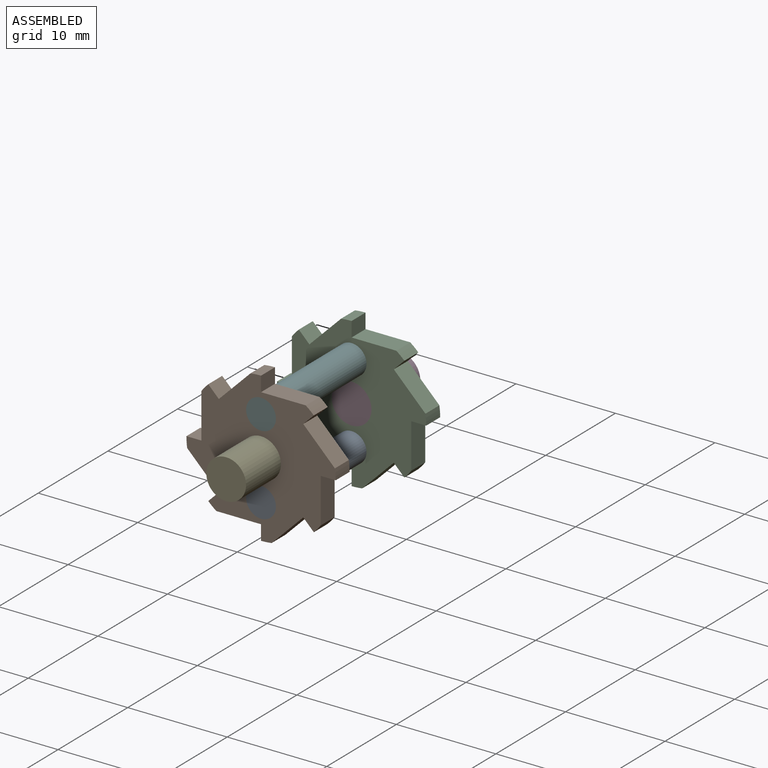
[diagram: assembled view]
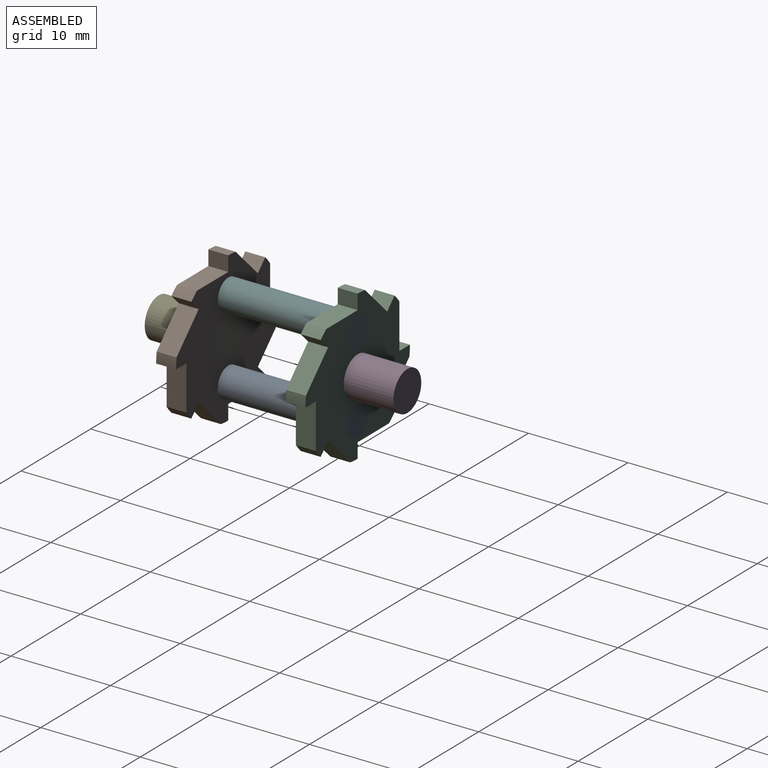
[diagram: assembled view, second angle]
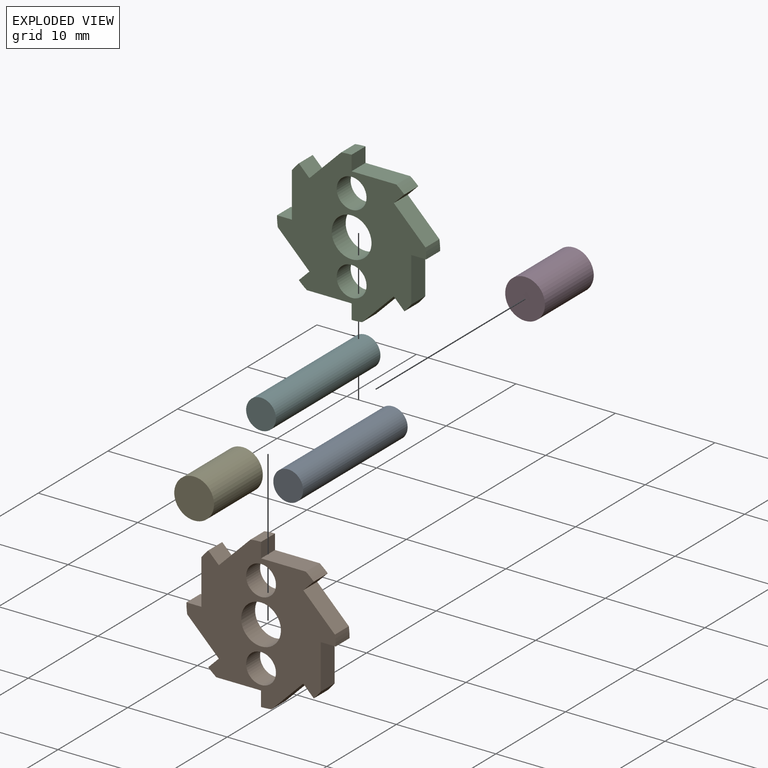
[diagram: exploded view]
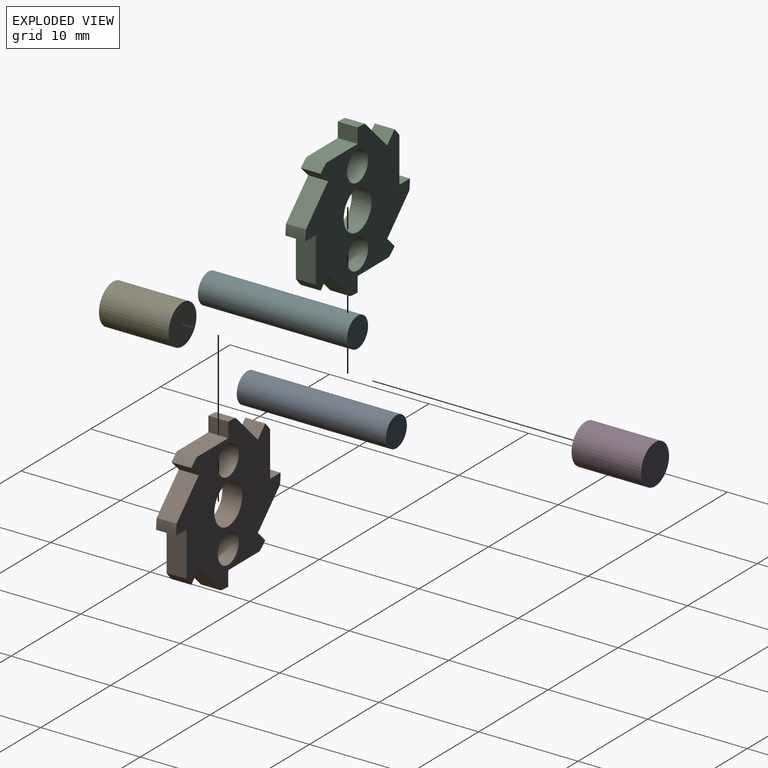
[diagram: exploded view, second angle]
ASSEMBLY  parts=6 mates=10
PART A: 3 faces, bbox 3x15x3 mm
  f0: cylinder r=1.5mm len=15mm, axis (0,1,0), area 141.4mm2, adj f1,f2
  f1: plane 3x3mm, normal (0,-1,0), area 7.1mm2, adj f0
  f2: plane 3x3mm, normal (0,1,0), area 7.1mm2, adj f0
PART B: 29 faces, bbox 15x2x15 mm
  f0: cylinder r=7.5mm len=2mm, axis (0,1,0), area 2.1mm2, adj f9,f10,f12,f25
  f1: cylinder r=7.5mm len=2mm, axis (0,1,0), area 2.1mm2, adj f9,f10,f23,f26
  f2: cylinder r=7.5mm len=2mm, axis (0,1,0), area 2.1mm2, adj f9,f10,f21,f24
  f3: cylinder r=7.5mm len=2mm, axis (0,1,0), area 2.1mm2, adj f9,f10,f19,f22
  f4: cylinder r=7.5mm len=2mm, axis (0,1,0), area 2.1mm2, adj f9,f10,f17,f20
  f5: cylinder r=7.5mm len=2mm, axis (0,1,0), area 2.1mm2, adj f9,f10,f15,f18
  f6: cylinder r=7.5mm len=2mm, axis (0,1,0), area 2.1mm2, adj f9,f10,f13,f16
  f7: cylinder r=2mm len=4mm, axis (0,1,0), area 25.1mm2, adj f9,f10
  f8: cylinder r=7.5mm len=2mm, axis (0,1,0), area 2.1mm2, adj f9,f10,f11,f14
  f9: plane 15x15mm, normal (0,-1,0), area 113.2mm2, adj f0,f1,f2,f3,f4,f5,f6,f7
  f10: plane 15x15mm, normal (0,1,0), area 113.2mm2, adj f0,f1,f2,f3,f4,f5,f6,f7
  f11: plane 2x1.5mm, normal (1,0,0), area 3mm2, adj f8,f9,f10,f12
  f12: plane 4.5x2mm, normal (0,0,1), area 9mm2, adj f0,f9,f10,f11
  f13: plane 2x1.06mm, normal (0.71,0,0.71), area 3mm2, adj f6,f9,f10,f14
  f14: plane 3.18x3.18mm, normal (-0.71,0,0.71), area 9mm2, adj f8,f9,f10,f13
  f15: plane 2x1.5mm, normal (0,0,1), area 3mm2, adj f5,f9,f10,f16
  f16: plane 4.5x2mm, normal (-1,0,0), area 9mm2, adj f6,f9,f10,f15
  f17: plane 2x1.06mm, normal (-0.71,0,0.71), area 3mm2, adj f4,f9,f10,f18
  f18: plane 3.18x3.18mm, normal (-0.71,0,-0.71), area 9mm2, adj f5,f9,f10,f17
  f19: plane 2x1.5mm, normal (-1,0,0), area 3mm2, adj f3,f9,f10,f20
  f20: plane 4.5x2mm, normal (0,0,-1), area 9mm2, adj f4,f9,f10,f19
  f21: plane 2x1.06mm, normal (-0.71,0,-0.71), area 3mm2, adj f2,f9,f10,f22
  f22: plane 3.18x3.18mm, normal (0.71,0,-0.71), area 9mm2, adj f3,f9,f10,f21
  f23: plane 2x1.5mm, normal (0,0,-1), area 3mm2, adj f1,f9,f10,f24
  f24: plane 4.5x2mm, normal (1,0,0), area 9mm2, adj f2,f9,f10,f23
  f25: plane 2x1.06mm, normal (0.71,0,-0.71), area 3mm2, adj f0,f9,f10,f26
  f26: plane 3.18x3.18mm, normal (0.71,0,0.71), area 9mm2, adj f1,f9,f10,f25
  f27: cylinder r=1.5mm len=3mm, axis (0,-1,0), area 18.8mm2, adj f9,f10
  f28: cylinder r=1.5mm len=3mm, axis (0,-1,0), area 18.8mm2, adj f9,f10
PART C: same geometry as B
PART D: 3 faces, bbox 4x7x4 mm
  f0: cylinder r=2mm len=7mm, axis (0,1,0), area 88mm2, adj f1,f2
  f1: plane 4x4mm, normal (0,-1,0), area 12.6mm2, adj f0
  f2: plane 4x4mm, normal (0,1,0), area 12.6mm2, adj f0
PART E: same geometry as D
PART F: same geometry as A
PLACE A t=(-0.46,10.52,-3.61)mm
PLACE B t=(-0.46,-2.48,0.39)mm
PLACE C t=(-0.46,10.52,0.39)mm
PLACE D t=(-0.46,15.52,0.39)mm
PLACE E t=(-0.46,-2.48,0.39)mm
PLACE F t=(-0.46,10.52,4.39)mm
MATE cylindrical F.f0 <-> B.f28  axis (0,1,0) through (-0.46,3.02,4.39)mm
MATE planar A.f0 <-> B.f9  axis (0,-1,0) through (-0.46,-4.48,-3.61)mm
MATE cylindrical D.f0 <-> C.f7  axis (0,1,0) through (-0.46,12.02,0.39)mm
MATE planar F.f0 <-> B.f9  axis (0,-1,0) through (-0.46,-4.48,4.39)mm
MATE planar B.f10 <-> E.f0  axis (0,1,0) through (5.54,-2.48,0.39)mm
MATE cylindrical A.f0 <-> B.f27  axis (0,1,0) through (-0.46,3.02,-3.61)mm
MATE planar D.f0 <-> C.f9  axis (0,-1,0) through (-0.46,8.52,0.39)mm
MATE cylindrical E.f0 <-> B.f7  axis (0,1,0) through (-0.46,-5.98,0.39)mm
MATE cylindrical C.f27 <-> A.f0  axis (0,-1,0) through (-0.46,8.52,-3.61)mm
MATE planar C.f10 <-> A.f0  axis (0,1,0) through (5.54,10.52,-1.86)mm
